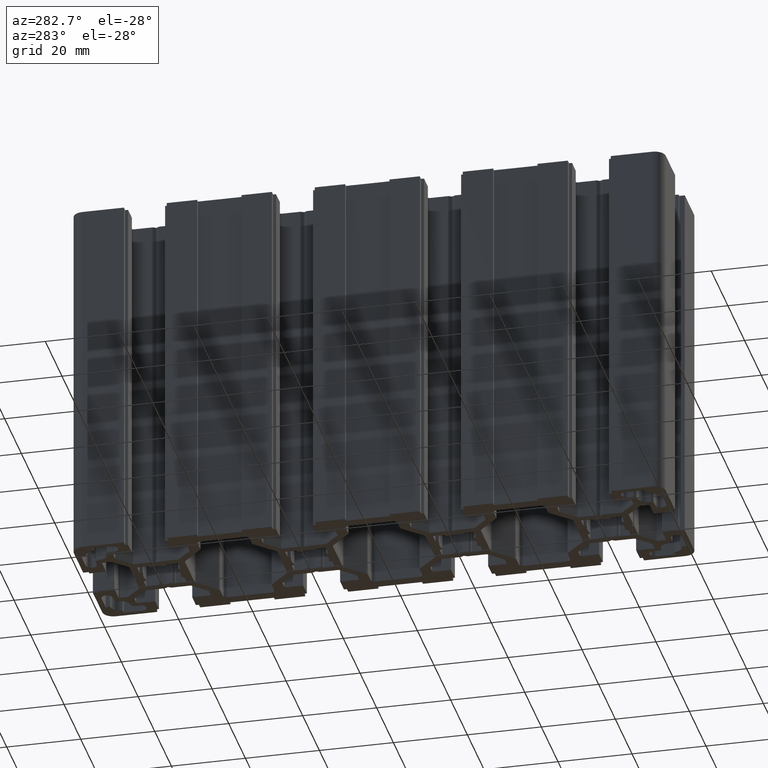
[diagram: clean part render]
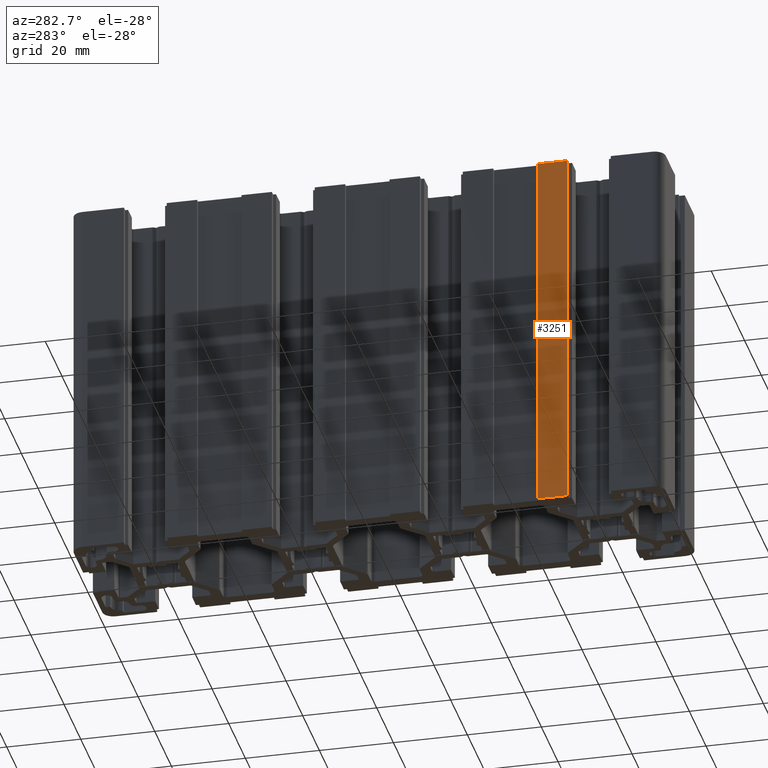
[diagram: same view with one face highlighted and labeled with its STEP entity id]
A machine part, auxiliary view. The second image highlights one B-rep face of the part: STEP entity #3251.
In plain terms, the highlighted planar face has unit normal (1, 0, 0).
Its self-contained STEP definition (entity closure, byte-faithful):
#545 = VERTEX_POINT ( 'NONE', #7076 ) ;
#547 = EDGE_CURVE ( 'NONE', #545, #548, #7075, .T. ) ;
#548 = VERTEX_POINT ( 'NONE', #7071 ) ;
#2397 = VERTEX_POINT ( 'NONE', #10358 ) ;
#2399 = EDGE_CURVE ( 'NONE', #2400, #2397, #10357, .T. ) ;
#2400 = VERTEX_POINT ( 'NONE', #10353 ) ;
#3181 = ORIENTED_EDGE ( 'NONE', *, *, #547, .F. ) ;
#3182 = ORIENTED_EDGE ( 'NONE', *, *, #3248, .T. ) ;
#3248 = EDGE_CURVE ( 'NONE', #545, #2400, #11752, .T. ) ;
#3251 = ADVANCED_FACE ( 'NONE', ( #11748 ), #11747, .F. ) ;
#3252 = EDGE_LOOP ( 'NONE', ( #3253, #3254, #3181, #3182 ) ) ;
#3253 = ORIENTED_EDGE ( 'NONE', *, *, #2399, .T. ) ;
#3254 = ORIENTED_EDGE ( 'NONE', *, *, #3255, .F. ) ;
#3255 = EDGE_CURVE ( 'NONE', #548, #2397, #11742, .T. ) ;
#7071 = CARTESIAN_POINT ( 'NONE',  ( -20.00000000000000000, -54.20000114440910000, 100.0000000000000000 ) ) ;
#7072 = DIRECTION ( 'NONE',  ( 0.0000000000000000000, -1.000000000000000000, 0.0000000000000000000 ) ) ;
#7073 = VECTOR ( 'NONE', #7072, 1000.000000000000000 ) ;
#7074 = CARTESIAN_POINT ( 'NONE',  ( -20.00000000000000000, -54.20000114440910000, 100.0000000000000000 ) ) ;
#7075 = LINE ( 'NONE', #7074, #7073 ) ;
#7076 = CARTESIAN_POINT ( 'NONE',  ( -20.00000000000000000, -46.00000152587885800, 100.0000000000000000 ) ) ;
#10353 = CARTESIAN_POINT ( 'NONE',  ( -20.00000000000000000, -46.00000152587885800, 0.0000000000000000000 ) ) ;
#10354 = DIRECTION ( 'NONE',  ( 0.0000000000000000000, -1.000000000000000000, 0.0000000000000000000 ) ) ;
#10355 = VECTOR ( 'NONE', #10354, 1000.000000000000000 ) ;
#10356 = CARTESIAN_POINT ( 'NONE',  ( -20.00000000000000000, -54.20000114440910000, 0.0000000000000000000 ) ) ;
#10357 = LINE ( 'NONE', #10356, #10355 ) ;
#10358 = CARTESIAN_POINT ( 'NONE',  ( -20.00000000000000000, -54.20000114440910000, 0.0000000000000000000 ) ) ;
#11739 = DIRECTION ( 'NONE',  ( 0.0000000000000000000, 0.0000000000000000000, -1.000000000000000000 ) ) ;
#11740 = VECTOR ( 'NONE', #11739, 1000.000000000000000 ) ;
#11741 = CARTESIAN_POINT ( 'NONE',  ( -20.00000000000000000, -54.20000114440910000, 100.0000000000000000 ) ) ;
#11742 = LINE ( 'NONE', #11741, #11740 ) ;
#11743 = DIRECTION ( 'NONE',  ( 0.0000000000000000000, 0.0000000000000000000, -1.000000000000000000 ) ) ;
#11744 = DIRECTION ( 'NONE',  ( 1.000000000000000000, 0.0000000000000000000, 0.0000000000000000000 ) ) ;
#11745 = CARTESIAN_POINT ( 'NONE',  ( -20.00000000000000000, -54.20000114440910000, 100.0000000000000000 ) ) ;
#11746 = AXIS2_PLACEMENT_3D ( 'NONE', #11745, #11744, #11743 ) ;
#11747 = PLANE ( 'NONE',  #11746 ) ;
#11748 = FACE_OUTER_BOUND ( 'NONE', #3252, .T. ) ;
#11749 = DIRECTION ( 'NONE',  ( 0.0000000000000000000, 0.0000000000000000000, -1.000000000000000000 ) ) ;
#11750 = VECTOR ( 'NONE', #11749, 1000.000000000000000 ) ;
#11751 = CARTESIAN_POINT ( 'NONE',  ( -20.00000000000000000, -46.00000152587885800, 100.0000000000000000 ) ) ;
#11752 = LINE ( 'NONE', #11751, #11750 ) ;